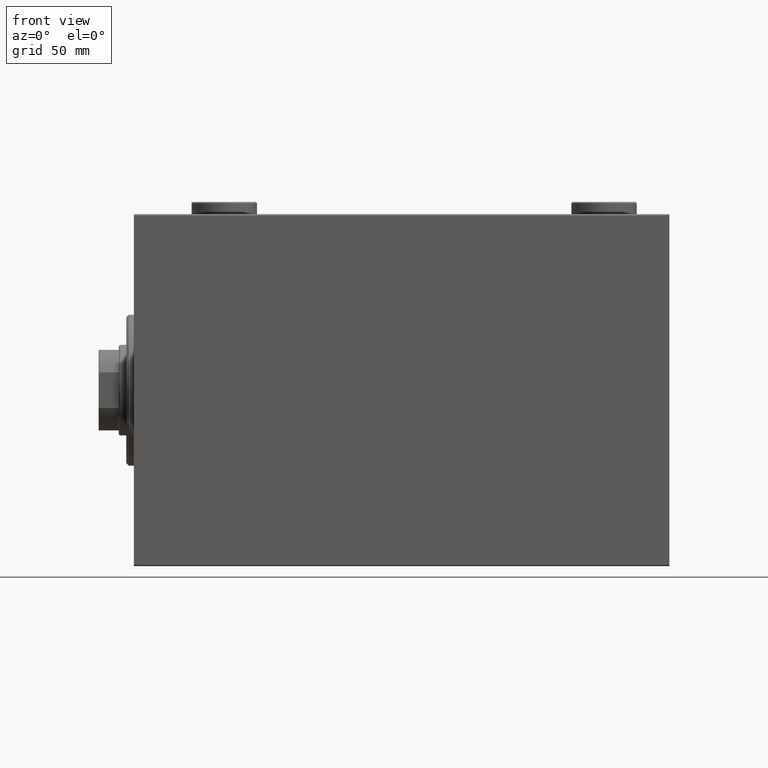
[diagram: clean part render]
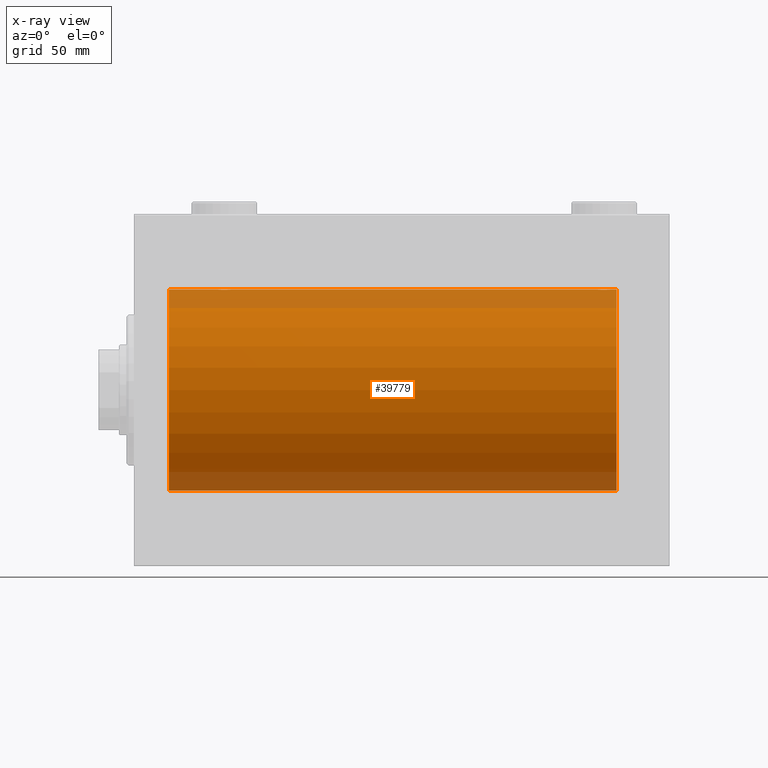
[diagram: x-ray — body ghosted, one internal face saturated and labeled with its STEP entity id]
A machine part, front view, then the same camera in x-ray: the body is ghosted and one INTERNAL B-rep face — a face not visible from any outside direction — is saturated and labeled: STEP entity #39779.
In plain terms, the highlighted cylindrical surface (partial cylindrical patch) has radius 40 mm, axis along (-1, -0, -0).
Its self-contained STEP definition (entity closure, byte-faithful):
#92 = CARTESIAN_POINT ( 'NONE',  ( 38.25829670320502629, -1.984537326394305801, 39.95097977400578060 ) ) ;
#376 = CARTESIAN_POINT ( 'NONE',  ( 189.3825168091146622, -1.833695109615722352, 39.95828327492363030 ) ) ;
#766 = CARTESIAN_POINT ( 'NONE',  ( 14.00000000000001243, 0.000000000000000000, 40.00000000000000000 ) ) ;
#1131 = CARTESIAN_POINT ( 'NONE',  ( 185.1730981536758520, -2.387636253591822300, -39.92882473497733287 ) ) ;
#1820 = CARTESIAN_POINT ( 'NONE',  ( 187.7786952341575102, -2.903766417398233823, -39.89448096967571900 ) ) ;
#2046 = CARTESIAN_POINT ( 'NONE',  ( 187.9693834189446875, -2.845855236045351067, -39.89870693240651178 ) ) ;
#2081 = CARTESIAN_POINT ( 'NONE',  ( 35.03510674146484405, -2.847401743820449305, -39.89859630624607689 ) ) ;
#2639 = CARTESIAN_POINT ( 'NONE',  ( 32.99999999999997158, -0.1957844162750552452, 40.00000000000000000 ) ) ;
#2939 = CARTESIAN_POINT ( 'NONE',  ( 184.0000000000000000, -1.482387970046064334E-23, 40.00000000000000000 ) ) ;
#3060 = CARTESIAN_POINT ( 'NONE',  ( 190.0000000000000000, 4.898587181765620889E-15, -40.00000000000000000 ) ) ;
#3161 = CARTESIAN_POINT ( 'NONE',  ( 184.3956640008792078, -1.502129635934003948, 39.97212271185186694 ) ) ;
#3289 = CARTESIAN_POINT ( 'NONE',  ( 14.00000000000001243, 4.898587196589413026E-15, -40.00000000000000000 ) ) ;
#3842 = CARTESIAN_POINT ( 'NONE',  ( 188.8269018463241764, -2.387636253591820079, 39.92882473497732576 ) ) ;
#4136 = CARTESIAN_POINT ( 'NONE',  ( 189.8466527301313818, -0.9668189122103265642, -39.98872185468383122 ) ) ;
#4368 = CARTESIAN_POINT ( 'NONE',  ( 188.9846144781228361, -2.258217541132900852, -39.93644519243655111 ) ) ;
#5127 = VECTOR ( 'NONE', #34218, 1000.000000000000000 ) ;
#5394 = DIRECTION ( 'NONE',  ( -1.000000000000000000, -0.000000000000000000, -0.000000000000000000 ) ) ;
#5410 = B_SPLINE_CURVE_WITH_KNOTS ( 'NONE', 3,
 ( #10040, #2639, #13284, #10497, #16745, #24146, #27847, #31308, #38226, #6572, #30850, #20689, #45611, #41914, #24376, #27384, #6804, #13965, #24599, #17662, #38685, #31763, #7032, #21141, #35229, #92, #14190, #25970, #43035, #8161, #35453, #15097 ),
 .UNSPECIFIED., .F., .F.,
 ( 4, 2, 2, 2, 2, 2, 2, 2, 2, 2, 2, 2, 2, 2, 2, 4 ),
 ( 0.009382660366305105304, 0.009968941372944142842, 0.01055522237958318038, 0.01114150338622221965, 0.01172778439286125719, 0.01231406539950029473, 0.01290034640613933400, 0.01348662741277837154, 0.01407290841941740908, 0.01465918942605644835, 0.01524547043269548416, 0.01583175143933452517, 0.01641803244597356271, 0.01700431345261260024, 0.01759059445925163778, 0.01876315647252971286 ),
 .UNSPECIFIED. ) ;
#5546 = CARTESIAN_POINT ( 'NONE',  ( 33.30462992291564461, -1.331594428131640528, -39.97823692017208685 ) ) ;
#5764 = CARTESIAN_POINT ( 'NONE',  ( 35.22544321173658943, -2.904869018727217700, -39.89440043036668726 ) ) ;
#6017 = CARTESIAN_POINT ( 'NONE',  ( 192.0000000000000000, 4.898587196589413026E-15, -40.00000000000000000 ) ) ;
#6164 = CARTESIAN_POINT ( 'NONE',  ( 184.0000000000000000, -1.482387970046064334E-23, 40.00000000000000000 ) ) ;
#6222 = CARTESIAN_POINT ( 'NONE',  ( 33.39811271871507614, -1.506322235190781456, -39.97196309111974699 ) ) ;
#6572 = CARTESIAN_POINT ( 'NONE',  ( 34.01538552187719233, -2.258217541132905293, 39.93644519243653690 ) ) ;
#6637 = CARTESIAN_POINT ( 'NONE',  ( 184.6149239908464210, -1.830402106103516280, 39.95843610133492518 ) ) ;
#6804 = CARTESIAN_POINT ( 'NONE',  ( 35.79958713980802543, -2.999840380514749327, 39.88735335562824247 ) ) ;
#6865 = CARTESIAN_POINT ( 'NONE',  ( 189.6018872812850020, -1.506322235190787895, 39.97196309111976831 ) ) ;
#7032 = CARTESIAN_POINT ( 'NONE',  ( 37.50088468404035069, -2.604941918888315833, 39.91523680494983495 ) ) ;
#7323 = CARTESIAN_POINT ( 'NONE',  ( 187.3910969250933647, -2.980812880639897688, 39.88879797994690080 ) ) ;
#7392 = CARTESIAN_POINT ( 'NONE',  ( 189.9042517365135154, -0.7773146824710949199, -39.99291453282344122 ) ) ;
#7839 = CARTESIAN_POINT ( 'NONE',  ( 190.0000000000000000, -0.1957844162750470851, -39.99999999999999289 ) ) ;
#8085 = ORIENTED_EDGE ( 'NONE', *, *, #31466, .T. ) ;
#8106 = CARTESIAN_POINT ( 'NONE',  ( 38.98101877110926239, -0.3904143323715931757, -39.99856256910221219 ) ) ;
#8161 = CARTESIAN_POINT ( 'NONE',  ( 38.92026174991647025, -0.7903958539027386987, 39.99381900068935636 ) ) ;
#8307 = CARTESIAN_POINT ( 'NONE',  ( 185.6714635525370909, -2.696981015661925163, -39.90904630908467965 ) ) ;
#8338 = CARTESIAN_POINT ( 'NONE',  ( 36.77869523415743913, -2.903766417398228938, -39.89448096967571900 ) ) ;
#8381 = DIRECTION ( 'NONE',  ( -1.000000000000000000, -0.000000000000000000, -0.000000000000000000 ) ) ;
#8769 = CARTESIAN_POINT ( 'NONE',  ( 186.8043946892691451, -3.000157693440640205, -39.88732948994960736 ) ) ;
#8803 = CARTESIAN_POINT ( 'NONE',  ( 39.00000000000000000, 4.898587181754971267E-15, -40.00000000000000000 ) ) ;
#8886 = B_SPLINE_CURVE_WITH_KNOTS ( 'NONE', 3,
 ( #2939, #35295, #14029, #38289, #17042, #31142, #3161, #6637, #14252, #17496, #38517, #42434, #10784, #41749, #10102, #10332, #28140, #38974, #7323, #24207, #20754, #35518, #14480, #3842, #17951, #31370, #376, #6865, #45447, #27909, #41977, #29265 ),
 .UNSPECIFIED., .F., .F.,
 ( 4, 2, 2, 2, 2, 2, 2, 2, 2, 2, 2, 2, 2, 2, 2, 4 ),
 ( 0.009382660366305094896, 0.009968941372944130699, 0.01055522237958316650, 0.01114150338622220404, 0.01172778439286123985, 0.01231406539950027565, 0.01290034640613930972, 0.01348662741277834379, 0.01407290841941737959, 0.01465918942605641540, 0.01524547043269544946, 0.01583175143933448353, 0.01641803244597352107, 0.01700431345261255514, 0.01759059445925158921, 0.01876315647252969204 ),
 .UNSPECIFIED. ) ;
#9234 = DIRECTION ( 'NONE',  ( 0.000000000000000000, 0.000000000000000000, 1.000000000000000000 ) ) ;
#10040 = CARTESIAN_POINT ( 'NONE',  ( 32.99999999999999289, -1.483452932268112700E-23, 40.00000000000000000 ) ) ;
#10102 = CARTESIAN_POINT ( 'NONE',  ( 186.2213047658425182, -2.903766417398230271, 39.89448096967571189 ) ) ;
#10332 = CARTESIAN_POINT ( 'NONE',  ( 186.6047751654642468, -2.980272303779546217, 39.88883864243170052 ) ) ;
#10497 = CARTESIAN_POINT ( 'NONE',  ( 33.09574826348647036, -0.7773146824711036906, 39.99291453282343412 ) ) ;
#10784 = CARTESIAN_POINT ( 'NONE',  ( 185.6677573113414041, -2.695129988695745826, 39.90917164320281074 ) ) ;
#10883 = VERTEX_POINT ( 'NONE', #45339 ) ;
#10957 = DIRECTION ( 'NONE',  ( -1.000000000000000000, -0.000000000000000000, -0.000000000000000000 ) ) ;
#11457 = CARTESIAN_POINT ( 'NONE',  ( 192.0000000000000000, 4.898587196589413026E-15, -40.00000000000000000 ) ) ;
#11772 = CARTESIAN_POINT ( 'NONE',  ( 185.0186372048576970, -2.261082456166712440, -39.93628274425757496 ) ) ;
#11809 = CARTESIAN_POINT ( 'NONE',  ( 37.98461447812278635, -2.258217541132897743, -39.93644519243654400 ) ) ;
#12038 = CARTESIAN_POINT ( 'NONE',  ( 38.26097616994740491, -1.981471132463162643, -39.95113231465139592 ) ) ;
#12645 = CARTESIAN_POINT ( 'NONE',  ( 190.0000000000000000, 1.446721683758770418E-15, 40.00000000000000000 ) ) ;
#12694 = EDGE_CURVE ( 'NONE', #38384, #39050, #43989, .T. ) ;
#12790 = FACE_OUTER_BOUND ( 'NONE', #43556, .T. ) ;
#12803 = ORIENTED_EDGE ( 'NONE', *, *, #13820, .T. ) ;
#13156 = ORIENTED_EDGE ( 'NONE', *, *, #30007, .F. ) ;
#13169 = CARTESIAN_POINT ( 'NONE',  ( 35.80439468926913804, -3.000157693440631324, -39.88732948994960026 ) ) ;
#13284 = CARTESIAN_POINT ( 'NONE',  ( 33.01898122889073051, -0.3904143323715976166, 39.99856256910221219 ) ) ;
#13353 = CARTESIAN_POINT ( 'NONE',  ( 32.99999999999999289, 4.605585004310627937E-15, -40.00000000000000000 ) ) ;
#13395 = CARTESIAN_POINT ( 'NONE',  ( 35.60890307490667794, -2.980812880639892359, -39.88879797994688658 ) ) ;
#13820 = EDGE_CURVE ( 'NONE', #10883, #23788, #5410, .T. ) ;
#13965 = CARTESIAN_POINT ( 'NONE',  ( 36.19560531073086906, -3.000157693440643758, 39.88732948994960026 ) ) ;
#14029 = CARTESIAN_POINT ( 'NONE',  ( 184.0189812288907660, -0.3904143323715967839, 39.99856256910221219 ) ) ;
#14190 = CARTESIAN_POINT ( 'NONE',  ( 38.38251680911464803, -1.833695109615718355, 39.95828327492363741 ) ) ;
#14249 = EDGE_CURVE ( 'NONE', #16389, #23788, #24664, .T. ) ;
#14252 = CARTESIAN_POINT ( 'NONE',  ( 184.7390238300525596, -1.981471132463162643, 39.95113231465138171 ) ) ;
#14480 = CARTESIAN_POINT ( 'NONE',  ( 188.5008846840404146, -2.604941918888313612, 39.91523680494984916 ) ) ;
#15097 = CARTESIAN_POINT ( 'NONE',  ( 39.00000000000000000, 1.037715139942869821E-15, 40.00000000000000000 ) ) ;
#15241 = CARTESIAN_POINT ( 'NONE',  ( 187.3952248345357816, -2.980272303779548881, -39.88883864243168631 ) ) ;
#15274 = CARTESIAN_POINT ( 'NONE',  ( 38.84665273013138176, -0.9668189122103333366, -39.98872185468385254 ) ) ;
#15509 = CARTESIAN_POINT ( 'NONE',  ( 38.69721340580881730, -1.327859336864144035, -39.97836169682019403 ) ) ;
#15956 = CARTESIAN_POINT ( 'NONE',  ( 38.90425173651351543, -0.7773146824710984726, -39.99291453282344122 ) ) ;
#16158 = ORIENTED_EDGE ( 'NONE', *, *, #20783, .T. ) ;
#16389 = VERTEX_POINT ( 'NONE', #6164 ) ;
#16450 = VERTEX_POINT ( 'NONE', #11457 ) ;
#16745 = CARTESIAN_POINT ( 'NONE',  ( 33.15334726986859692, -0.9668189122103387767, 39.98872185468385254 ) ) ;
#17042 = CARTESIAN_POINT ( 'NONE',  ( 184.1533472698686182, -0.9668189122103342248, 39.98872185468384544 ) ) ;
#17206 = CARTESIAN_POINT ( 'NONE',  ( 184.0000000000000000, -8.638112143271993746E-15, -40.00000000000000000 ) ) ;
#17496 = CARTESIAN_POINT ( 'NONE',  ( 185.0153855218772208, -2.258217541132898631, 39.93644519243653690 ) ) ;
#17568 = VECTOR ( 'NONE', #8381, 1000.000000000000000 ) ;
#17662 = CARTESIAN_POINT ( 'NONE',  ( 36.77455678826341057, -2.904869018727228358, 39.89440043036668015 ) ) ;
#17951 = CARTESIAN_POINT ( 'NONE',  ( 188.9813627951422745, -2.261082456166709775, 39.93628274425758207 ) ) ;
#18020 = CARTESIAN_POINT ( 'NONE',  ( 189.6972134058088102, -1.327859336864137374, -39.97836169682017271 ) ) ;
#18476 = CARTESIAN_POINT ( 'NONE',  ( 188.8304482282240429, -2.384933850258111221, -39.92898715513241825 ) ) ;
#18754 = VECTOR ( 'NONE', #44212, 1000.000000000000000 ) ;
#20302 = EDGE_CURVE ( 'NONE', #40525, #38384, #29847, .T. ) ;
#20591 = ORIENTED_EDGE ( 'NONE', *, *, #36047, .F. ) ;
#20689 = CARTESIAN_POINT ( 'NONE',  ( 34.49556917086533758, -2.602909538701760006, 39.91537030566259148 ) ) ;
#20754 = CARTESIAN_POINT ( 'NONE',  ( 187.9648932585351986, -2.847401743820454190, 39.89859630624609821 ) ) ;
#20783 = EDGE_CURVE ( 'NONE', #16389, #35137, #8886, .T. ) ;
#21141 = CARTESIAN_POINT ( 'NONE',  ( 37.82690184632411246, -2.387636253591820079, 39.92882473497731866 ) ) ;
#21377 = LINE ( 'NONE', #42603, #30906 ) ;
#21423 = ORIENTED_EDGE ( 'NONE', *, *, #31317, .T. ) ;
#21952 = CARTESIAN_POINT ( 'NONE',  ( 189.3850760091536074, -1.830402106103521831, -39.95843610133494650 ) ) ;
#22450 = CARTESIAN_POINT ( 'NONE',  ( 36.39522483453576029, -2.980272303779541332, -39.88883864243169342 ) ) ;
#22763 = EDGE_CURVE ( 'NONE', #39050, #28896, #27803, .T. ) ;
#22776 = ORIENTED_EDGE ( 'NONE', *, *, #26249, .F. ) ;
#22875 = CARTESIAN_POINT ( 'NONE',  ( 184.0000000000000000, -8.638112143271993746E-15, -40.00000000000000000 ) ) ;
#22908 = CARTESIAN_POINT ( 'NONE',  ( 38.99999999999999289, -0.1957844162750510819, -40.00000000000000711 ) ) ;
#23348 = CARTESIAN_POINT ( 'NONE',  ( 33.07973825008353685, -0.7903958539027382546, -39.99381900068937767 ) ) ;
#23635 = VECTOR ( 'NONE', #23988, 1000.000000000000000 ) ;
#23788 = VERTEX_POINT ( 'NONE', #43060 ) ;
#23988 = DIRECTION ( 'NONE',  ( -1.000000000000000000, -0.000000000000000000, -0.000000000000000000 ) ) ;
#24146 = CARTESIAN_POINT ( 'NONE',  ( 33.30278659419118270, -1.327859336864150253, 39.97836169682017982 ) ) ;
#24207 = CARTESIAN_POINT ( 'NONE',  ( 187.7745567882634532, -2.904869018727220364, 39.89440043036669437 ) ) ;
#24312 = CARTESIAN_POINT ( 'NONE',  ( 192.0000000000000000, 0.000000000000000000, 40.00000000000000000 ) ) ;
#24376 = CARTESIAN_POINT ( 'NONE',  ( 35.22130476584258219, -2.903766417398241373, 39.89448096967571189 ) ) ;
#24599 = CARTESIAN_POINT ( 'NONE',  ( 36.39109692509333627, -2.980812880639903906, 39.88879797994688658 ) ) ;
#24664 = LINE ( 'NONE', #38518, #30607 ) ;
#25640 = CARTESIAN_POINT ( 'NONE',  ( 184.3981127187151117, -1.506322235190792780, -39.97196309111976831 ) ) ;
#25970 = CARTESIAN_POINT ( 'NONE',  ( 38.60188728128492386, -1.506322235190783232, 39.97196309111974699 ) ) ;
#26135 = ORIENTED_EDGE ( 'NONE', *, *, #22763, .T. ) ;
#26249 = EDGE_CURVE ( 'NONE', #45268, #35137, #35874, .T. ) ;
#26560 = CARTESIAN_POINT ( 'NONE',  ( 185.4991153159597275, -2.604941918888315833, -39.91523680494984916 ) ) ;
#26593 = CARTESIAN_POINT ( 'NONE',  ( 34.49911531595966352, -2.604941918888306507, -39.91523680494982784 ) ) ;
#26802 = CARTESIAN_POINT ( 'NONE',  ( 192.0000000000000000, 0.000000000000000000, 0.000000000000000000 ) ) ;
#27272 = CARTESIAN_POINT ( 'NONE',  ( 36.20041286019198168, -2.999840380514735116, -39.88735335562824957 ) ) ;
#27384 = CARTESIAN_POINT ( 'NONE',  ( 35.60477516546423260, -2.980272303779553766, 39.88883864243167920 ) ) ;
#27457 = CARTESIAN_POINT ( 'NONE',  ( 192.0000000000000000, 4.898587196589413026E-15, -40.00000000000000000 ) ) ;
#27803 = CIRCLE ( 'NONE', #31494, 40.00000000000000000 ) ;
#27847 = CARTESIAN_POINT ( 'NONE',  ( 33.39566400087915810, -1.502129635934004614, 39.97212271185186694 ) ) ;
#27909 = CARTESIAN_POINT ( 'NONE',  ( 189.9202617499165342, -0.7903958539027363672, 39.99381900068937767 ) ) ;
#27910 = DIRECTION ( 'NONE',  ( -1.000000000000000000, -0.000000000000000000, -0.000000000000000000 ) ) ;
#27924 = AXIS2_PLACEMENT_3D ( 'NONE', #44205, #5394, #33600 ) ;
#28120 = ORIENTED_EDGE ( 'NONE', *, *, #12694, .T. ) ;
#28140 = CARTESIAN_POINT ( 'NONE',  ( 186.7995871398079828, -2.999840380514742666, 39.88735335562825668 ) ) ;
#28149 = LINE ( 'NONE', #27457, #23635 ) ;
#28397 = B_SPLINE_CURVE_WITH_KNOTS ( 'NONE', 3,
 ( #35363, #7839, #39043, #7392, #4136, #18020, #32123, #21952, #36030, #4368, #18476, #32577, #40412, #2046, #1820, #15241, #33042, #8769, #36265, #29346, #32806, #8307, #26560, #1131, #11772, #29802, #39727, #25640, #40638, #33273, #36726, #22875 ),
 .UNSPECIFIED., .F., .F.,
 ( 4, 2, 2, 2, 2, 2, 2, 2, 2, 2, 2, 2, 2, 2, 2, 4 ),
 ( 0.009382660366305091426, 0.009968941372944125495, 0.01055522237958316130, 0.01114150338622219710, 0.01172778439286123117, 0.01231406539950026524, 0.01290034640613930104, 0.01348662741277833685, 0.01407290841941737092, 0.01465918942605640499, 0.01524547043269544079, 0.01583175143933447659, 0.01641803244597351066, 0.01700431345261254473, 0.01759059445925158227, 0.01876315647252968163 ),
 .UNSPECIFIED. ) ;
#28896 = VERTEX_POINT ( 'NONE', #766 ) ;
#29117 = CARTESIAN_POINT ( 'NONE',  ( 39.00000000000000000, 4.898587181754971267E-15, -40.00000000000000000 ) ) ;
#29265 = CARTESIAN_POINT ( 'NONE',  ( 190.0000000000000000, 1.446721683758770418E-15, 40.00000000000000000 ) ) ;
#29346 = CARTESIAN_POINT ( 'NONE',  ( 186.2254432117365752, -2.904869018727222585, -39.89440043036668726 ) ) ;
#29380 = CARTESIAN_POINT ( 'NONE',  ( 38.38507600915353635, -1.830402106103512505, -39.95843610133493229 ) ) ;
#29614 = CARTESIAN_POINT ( 'NONE',  ( 38.60433599912083480, -1.502129635934000396, -39.97212271185185273 ) ) ;
#29802 = CARTESIAN_POINT ( 'NONE',  ( 184.7417032967950092, -1.984537326394312906, -39.95097977400578770 ) ) ;
#29847 = B_SPLINE_CURVE_WITH_KNOTS ( 'NONE', 3,
 ( #8803, #22908, #8106, #15956, #15274, #15509, #29614, #29380, #12038, #11809, #43445, #39993, #36984, #30065, #8338, #22450, #27272, #13169, #13395, #5764, #2081, #37423, #26593, #37208, #34426, #34659, #44816, #6222, #5546, #23348, #41117, #30969 ),
 .UNSPECIFIED., .F., .F.,
 ( 4, 2, 2, 2, 2, 2, 2, 2, 2, 2, 2, 2, 2, 2, 2, 4 ),
 ( 0.009382660366305110508, 0.009968941372944146312, 0.01055522237958318212, 0.01114150338622221792, 0.01172778439286125372, 0.01231406539950028953, 0.01290034640613932533, 0.01348662741277836113, 0.01407290841941739694, 0.01465918942605643274, 0.01524547043269546855, 0.01583175143933450435, 0.01641803244597354189, 0.01700431345261257596, 0.01759059445925161003, 0.01876315647252968163 ),
 .UNSPECIFIED. ) ;
#29911 = CYLINDRICAL_SURFACE ( 'NONE', #27924, 40.00000000000000000 ) ;
#30007 = EDGE_CURVE ( 'NONE', #10883, #28896, #21377, .T. ) ;
#30065 = CARTESIAN_POINT ( 'NONE',  ( 36.96938341894465907, -2.845855236045336856, -39.89870693240651178 ) ) ;
#30160 = VERTEX_POINT ( 'NONE', #3060 ) ;
#30607 = VECTOR ( 'NONE', #27910, 1000.000000000000000 ) ;
#30850 = CARTESIAN_POINT ( 'NONE',  ( 34.16955177177597847, -2.384933850258112553, 39.92898715513240404 ) ) ;
#30906 = VECTOR ( 'NONE', #10957, 1000.000000000000000 ) ;
#30969 = CARTESIAN_POINT ( 'NONE',  ( 32.99999999999999289, 4.605585004310627937E-15, -40.00000000000000000 ) ) ;
#31142 = CARTESIAN_POINT ( 'NONE',  ( 184.3027865941912182, -1.327859336864145590, 39.97836169682017982 ) ) ;
#31308 = CARTESIAN_POINT ( 'NONE',  ( 33.61492399084646365, -1.830402106103518722, 39.95843610133494650 ) ) ;
#31317 = EDGE_CURVE ( 'NONE', #16450, #30160, #37679, .T. ) ;
#31370 = CARTESIAN_POINT ( 'NONE',  ( 189.2582967032049623, -1.984537326394308909, 39.95097977400577349 ) ) ;
#31466 = EDGE_CURVE ( 'NONE', #30160, #31753, #28397, .T. ) ;
#31494 = AXIS2_PLACEMENT_3D ( 'NONE', #44058, #40597, #37581 ) ;
#31753 = VERTEX_POINT ( 'NONE', #17206 ) ;
#31763 = CARTESIAN_POINT ( 'NONE',  ( 37.32853644746295885, -2.696981015661930936, 39.90904630908465833 ) ) ;
#32123 = CARTESIAN_POINT ( 'NONE',  ( 189.6043359991208490, -1.502129635934011054, -39.97212271185185273 ) ) ;
#32577 = CARTESIAN_POINT ( 'NONE',  ( 188.5044308291347477, -2.602909538701760006, -39.91537030566259148 ) ) ;
#32803 = ORIENTED_EDGE ( 'NONE', *, *, #14249, .F. ) ;
#32806 = CARTESIAN_POINT ( 'NONE',  ( 186.0351067414649151, -2.847401743820456854, -39.89859630624609110 ) ) ;
#32879 = CARTESIAN_POINT ( 'NONE',  ( 192.0000000000000000, 0.000000000000000000, 40.00000000000000000 ) ) ;
#33042 = CARTESIAN_POINT ( 'NONE',  ( 187.2004128601921025, -2.999840380514743998, -39.88735335562825668 ) ) ;
#33273 = CARTESIAN_POINT ( 'NONE',  ( 184.0797382500835511, -0.7903958539027432506, -39.99381900068937767 ) ) ;
#33600 = DIRECTION ( 'NONE',  ( 0.000000000000000000, 0.000000000000000000, 1.000000000000000000 ) ) ;
#33954 = CIRCLE ( 'NONE', #36989, 40.00000000000000000 ) ;
#34218 = DIRECTION ( 'NONE',  ( -1.000000000000000000, -0.000000000000000000, -0.000000000000000000 ) ) ;
#34426 = CARTESIAN_POINT ( 'NONE',  ( 34.01863720485770415, -2.261082456166700005, -39.93628274425758917 ) ) ;
#34659 = CARTESIAN_POINT ( 'NONE',  ( 33.74170329679496660, -1.984537326394300250, -39.95097977400577349 ) ) ;
#35137 = VERTEX_POINT ( 'NONE', #12645 ) ;
#35229 = CARTESIAN_POINT ( 'NONE',  ( 37.98136279514229585, -2.261082456166707111, 39.93628274425758207 ) ) ;
#35295 = CARTESIAN_POINT ( 'NONE',  ( 184.0000000000000000, -0.1957844162750525807, 40.00000000000000000 ) ) ;
#35363 = CARTESIAN_POINT ( 'NONE',  ( 190.0000000000000000, 4.898587181765620889E-15, -40.00000000000000000 ) ) ;
#35453 = CARTESIAN_POINT ( 'NONE',  ( 39.00000000000000711, -0.3964922677423692865, 40.00000000000000711 ) ) ;
#35518 = CARTESIAN_POINT ( 'NONE',  ( 188.3285364474629944, -2.696981015661923387, 39.90904630908469386 ) ) ;
#35874 = LINE ( 'NONE', #32879, #17568 ) ;
#36030 = CARTESIAN_POINT ( 'NONE',  ( 189.2609761699474689, -1.981471132463164420, -39.95113231465140302 ) ) ;
#36047 = EDGE_CURVE ( 'NONE', #16450, #45268, #33954, .T. ) ;
#36265 = CARTESIAN_POINT ( 'NONE',  ( 186.6089030749067774, -2.980812880639900353, -39.88879797994690080 ) ) ;
#36726 = CARTESIAN_POINT ( 'NONE',  ( 184.0000000000000000, -0.3964922677423805553, -40.00000000000000000 ) ) ;
#36984 = CARTESIAN_POINT ( 'NONE',  ( 37.33224268865864559, -2.695129988695729839, -39.90917164320280364 ) ) ;
#36989 = AXIS2_PLACEMENT_3D ( 'NONE', #26802, #40881, #9234 ) ;
#37208 = CARTESIAN_POINT ( 'NONE',  ( 34.17309815367588754, -2.387636253591812974, -39.92882473497732576 ) ) ;
#37423 = CARTESIAN_POINT ( 'NONE',  ( 34.67146355253704826, -2.696981015661917613, -39.90904630908468675 ) ) ;
#37581 = DIRECTION ( 'NONE',  ( 0.000000000000000000, 0.000000000000000000, 1.000000000000000000 ) ) ;
#37679 = LINE ( 'NONE', #6017, #5127 ) ;
#38226 = CARTESIAN_POINT ( 'NONE',  ( 33.73902383005257377, -1.981471132463168416, 39.95113231465138881 ) ) ;
#38289 = CARTESIAN_POINT ( 'NONE',  ( 184.0957482634864562, -0.7773146824711021363, 39.99291453282343412 ) ) ;
#38348 = EDGE_CURVE ( 'NONE', #31753, #40525, #28149, .T. ) ;
#38384 = VERTEX_POINT ( 'NONE', #13353 ) ;
#38517 = CARTESIAN_POINT ( 'NONE',  ( 185.1695517717760140, -2.384933850258109445, 39.92898715513240404 ) ) ;
#38518 = CARTESIAN_POINT ( 'NONE',  ( 192.0000000000000000, 0.000000000000000000, 40.00000000000000000 ) ) ;
#38685 = CARTESIAN_POINT ( 'NONE',  ( 36.96489325853514174, -2.847401743820462183, 39.89859630624607689 ) ) ;
#38974 = CARTESIAN_POINT ( 'NONE',  ( 187.1956053107309685, -3.000157693440639761, 39.88732948994960736 ) ) ;
#39043 = CARTESIAN_POINT ( 'NONE',  ( 189.9810187711092624, -0.3904143323715896785, -39.99856256910220509 ) ) ;
#39050 = VERTEX_POINT ( 'NONE', #3289 ) ;
#39453 = ORIENTED_EDGE ( 'NONE', *, *, #38348, .T. ) ;
#39727 = CARTESIAN_POINT ( 'NONE',  ( 184.6174831908853946, -1.833695109615727015, -39.95828327492365162 ) ) ;
#39779 = ADVANCED_FACE ( 'NONE', ( #12790 ), #29911, .F. ) ;
#39993 = CARTESIAN_POINT ( 'NONE',  ( 37.50443082913466242, -2.602909538701748016, -39.91537030566259148 ) ) ;
#40302 = CARTESIAN_POINT ( 'NONE',  ( 192.0000000000000000, 4.898587196589413026E-15, -40.00000000000000000 ) ) ;
#40412 = CARTESIAN_POINT ( 'NONE',  ( 188.3322426886586243, -2.695129988695748491, -39.90917164320283916 ) ) ;
#40525 = VERTEX_POINT ( 'NONE', #29117 ) ;
#40597 = DIRECTION ( 'NONE',  ( -1.000000000000000000, 0.000000000000000000, 0.000000000000000000 ) ) ;
#40638 = CARTESIAN_POINT ( 'NONE',  ( 184.3046299229156944, -1.331594428131648522, -39.97823692017211528 ) ) ;
#40881 = DIRECTION ( 'NONE',  ( -1.000000000000000000, 0.000000000000000000, 0.000000000000000000 ) ) ;
#41117 = CARTESIAN_POINT ( 'NONE',  ( 32.99999999999998579, -0.3964922677423637909, -39.99999999999998579 ) ) ;
#41259 = ORIENTED_EDGE ( 'NONE', *, *, #20302, .T. ) ;
#41749 = CARTESIAN_POINT ( 'NONE',  ( 186.0306165810552841, -2.845855236045348402, 39.89870693240650468 ) ) ;
#41914 = CARTESIAN_POINT ( 'NONE',  ( 35.03061658105534804, -2.845855236045349734, 39.89870693240651889 ) ) ;
#41977 = CARTESIAN_POINT ( 'NONE',  ( 190.0000000000000284, -0.3964922677423700081, 40.00000000000001421 ) ) ;
#42434 = CARTESIAN_POINT ( 'NONE',  ( 185.4955691708653944, -2.602909538701757342, 39.91537030566259858 ) ) ;
#42603 = CARTESIAN_POINT ( 'NONE',  ( 192.0000000000000000, 0.000000000000000000, 40.00000000000000000 ) ) ;
#43035 = CARTESIAN_POINT ( 'NONE',  ( 38.69537007708435539, -1.331594428131644747, 39.97823692017209396 ) ) ;
#43060 = CARTESIAN_POINT ( 'NONE',  ( 39.00000000000000000, 1.037715139942869821E-15, 40.00000000000000000 ) ) ;
#43445 = CARTESIAN_POINT ( 'NONE',  ( 37.83044822822401443, -2.384933850258100119, -39.92898715513241115 ) ) ;
#43556 = EDGE_LOOP ( 'NONE', ( #20591, #21423, #8085, #39453, #41259, #28120, #26135, #13156, #12803, #32803, #16158, #22776 ) ) ;
#43989 = LINE ( 'NONE', #40302, #18754 ) ;
#44058 = CARTESIAN_POINT ( 'NONE',  ( 14.00000000000001243, 0.000000000000000000, 0.000000000000000000 ) ) ;
#44205 = CARTESIAN_POINT ( 'NONE',  ( 192.0000000000000000, 0.000000000000000000, 0.000000000000000000 ) ) ;
#44212 = DIRECTION ( 'NONE',  ( -1.000000000000000000, -0.000000000000000000, -0.000000000000000000 ) ) ;
#44816 = CARTESIAN_POINT ( 'NONE',  ( 33.61748319088535908, -1.833695109615714802, -39.95828327492363741 ) ) ;
#45268 = VERTEX_POINT ( 'NONE', #24312 ) ;
#45339 = CARTESIAN_POINT ( 'NONE',  ( 32.99999999999999289, -1.483452932268112700E-23, 40.00000000000000000 ) ) ;
#45447 = CARTESIAN_POINT ( 'NONE',  ( 189.6953700770844478, -1.331594428131642527, 39.97823692017210107 ) ) ;
#45611 = CARTESIAN_POINT ( 'NONE',  ( 34.66775731134134730, -2.695129988695744494, 39.90917164320281074 ) ) ;